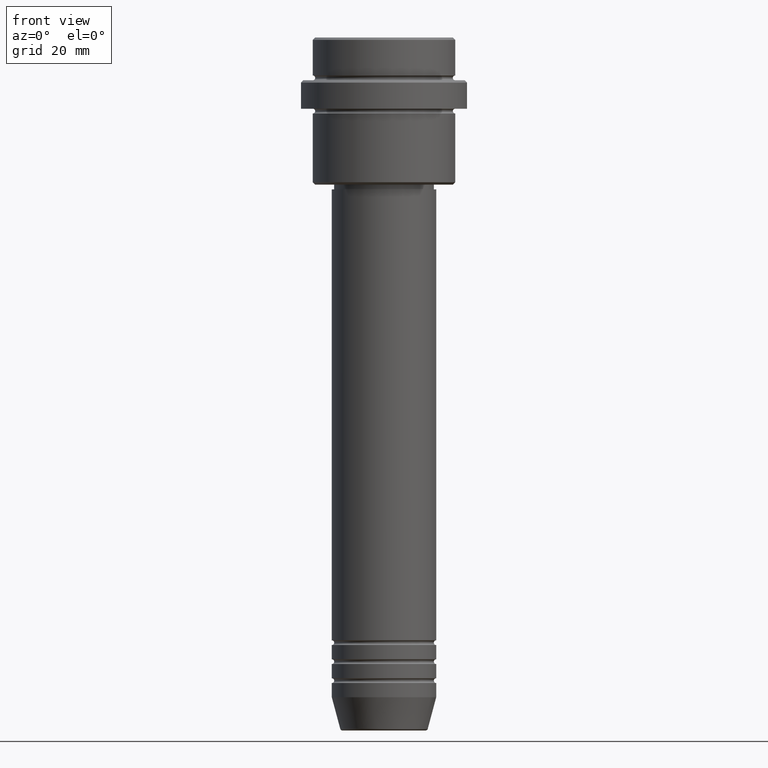
[diagram: clean part render]
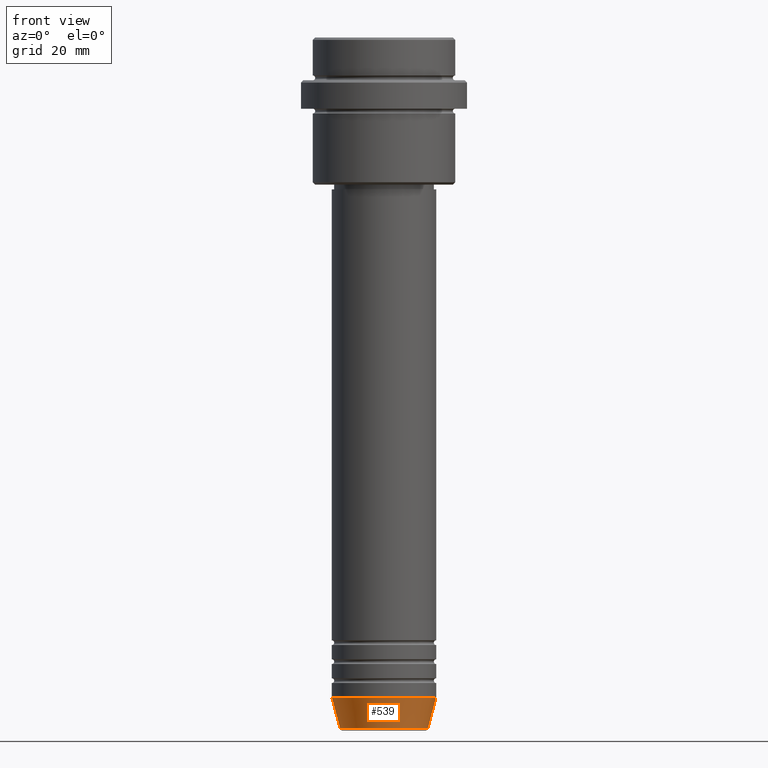
[diagram: same view with one face highlighted and labeled with its STEP entity id]
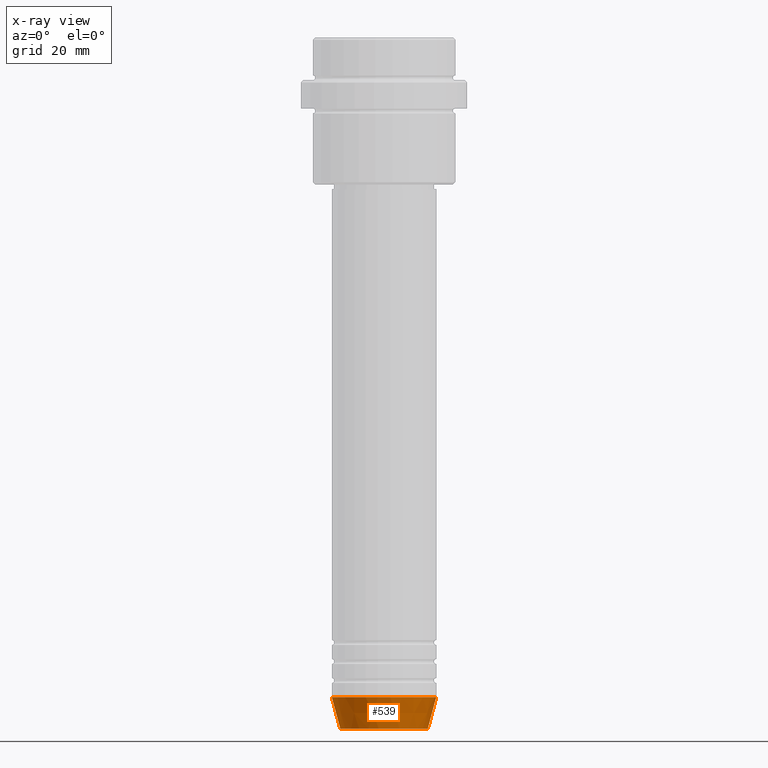
[diagram: x-ray of the same camera — body ghosted, the highlighted face saturated]
A machine part, front view. The second image highlights one B-rep face of the part: STEP entity #539.
The next image is the same camera in x-ray: the body ghosted, the highlighted face saturated — about 0% of this face is hidden behind the body in this view.
In plain terms, the highlighted conical surface has half-angle 15 deg.
Its self-contained STEP definition (entity closure, byte-faithful):
#2 = ORIENTED_EDGE ( 'NONE', *, *, #1402, .T. ) ;
#36 = VERTEX_POINT ( 'NONE', #1326 ) ;
#37 = CIRCLE ( 'NONE', #996, 11.00000000000000000 ) ;
#68 = FACE_OUTER_BOUND ( 'NONE', #705, .T. ) ;
#129 = DIRECTION ( 'NONE',  ( 1.000000000000000000, 0.000000000000000000, 0.000000000000000000 ) ) ;
#132 = CARTESIAN_POINT ( 'NONE',  ( 11.00000000000000000, 0.000000000000000000, -138.9999999999999716 ) ) ;
#233 = VERTEX_POINT ( 'NONE', #289 ) ;
#237 = CARTESIAN_POINT ( 'NONE',  ( 0.000000000000000000, 0.000000000000000000, -145.6294095225512422 ) ) ;
#289 = CARTESIAN_POINT ( 'NONE',  ( -9.223655072137191269, 1.238341722557647202E-15, -145.6294095225512422 ) ) ;
#291 = CARTESIAN_POINT ( 'NONE',  ( 11.00000000000000000, 0.000000000000000000, -138.9999999999999716 ) ) ;
#294 = DIRECTION ( 'NONE',  ( -0.000000000000000000, -0.000000000000000000, 1.000000000000000000 ) ) ;
#344 = LINE ( 'NONE', #1002, #640 ) ;
#345 = EDGE_CURVE ( 'NONE', #36, #466, #37, .T. ) ;
#391 = DIRECTION ( 'NONE',  ( 1.000000000000000000, 0.000000000000000000, 0.000000000000000000 ) ) ;
#406 = DIRECTION ( 'NONE',  ( 0.2588190451025222938, 0.000000000000000000, 0.9659258262890678681 ) ) ;
#459 = VERTEX_POINT ( 'NONE', #1332 ) ;
#460 = DIRECTION ( 'NONE',  ( -0.2588190451025222938, 3.169619151431783430E-17, 0.9659258262890678681 ) ) ;
#466 = VERTEX_POINT ( 'NONE', #132 ) ;
#539 = ADVANCED_FACE ( 'NONE', ( #68 ), #637, .T. ) ;
#543 = CIRCLE ( 'NONE', #1003, 9.223655072137191269 ) ;
#603 = LINE ( 'NONE', #291, #733 ) ;
#637 = CONICAL_SURFACE ( 'NONE', #926, 11.00000000000000000, 0.2617993877991510177 ) ;
#640 = VECTOR ( 'NONE', #460, 1000.000000000000000 ) ;
#669 = CARTESIAN_POINT ( 'NONE',  ( 0.000000000000000000, 0.000000000000000000, -138.9999999999999716 ) ) ;
#687 = DIRECTION ( 'NONE',  ( -0.000000000000000000, -0.000000000000000000, 1.000000000000000000 ) ) ;
#705 = EDGE_LOOP ( 'NONE', ( #898, #775, #2, #1134 ) ) ;
#733 = VECTOR ( 'NONE', #406, 1000.000000000000000 ) ;
#775 = ORIENTED_EDGE ( 'NONE', *, *, #1349, .T. ) ;
#898 = ORIENTED_EDGE ( 'NONE', *, *, #1341, .F. ) ;
#926 = AXIS2_PLACEMENT_3D ( 'NONE', #1395, #294, #391 ) ;
#996 = AXIS2_PLACEMENT_3D ( 'NONE', #669, #1097, #1071 ) ;
#1002 = CARTESIAN_POINT ( 'NONE',  ( -11.00000000000000000, 1.347111479062088405E-15, -138.9999999999999716 ) ) ;
#1003 = AXIS2_PLACEMENT_3D ( 'NONE', #237, #687, #129 ) ;
#1071 = DIRECTION ( 'NONE',  ( 1.000000000000000000, 0.000000000000000000, 0.000000000000000000 ) ) ;
#1097 = DIRECTION ( 'NONE',  ( -0.000000000000000000, -0.000000000000000000, 1.000000000000000000 ) ) ;
#1134 = ORIENTED_EDGE ( 'NONE', *, *, #345, .F. ) ;
#1326 = CARTESIAN_POINT ( 'NONE',  ( -11.00000000000000000, 1.347111479062088405E-15, -138.9999999999999716 ) ) ;
#1332 = CARTESIAN_POINT ( 'NONE',  ( 9.223655072137191269, 0.000000000000000000, -145.6294095225512422 ) ) ;
#1341 = EDGE_CURVE ( 'NONE', #233, #36, #344, .T. ) ;
#1349 = EDGE_CURVE ( 'NONE', #233, #459, #543, .T. ) ;
#1395 = CARTESIAN_POINT ( 'NONE',  ( 0.000000000000000000, 0.000000000000000000, -138.9999999999999716 ) ) ;
#1402 = EDGE_CURVE ( 'NONE', #459, #466, #603, .T. ) ;